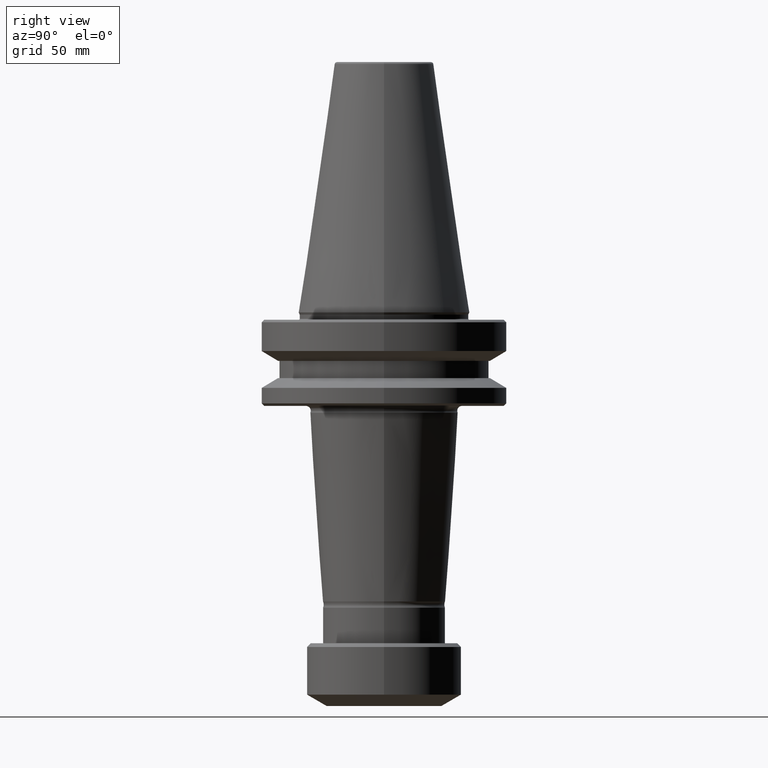
[diagram: clean part render]
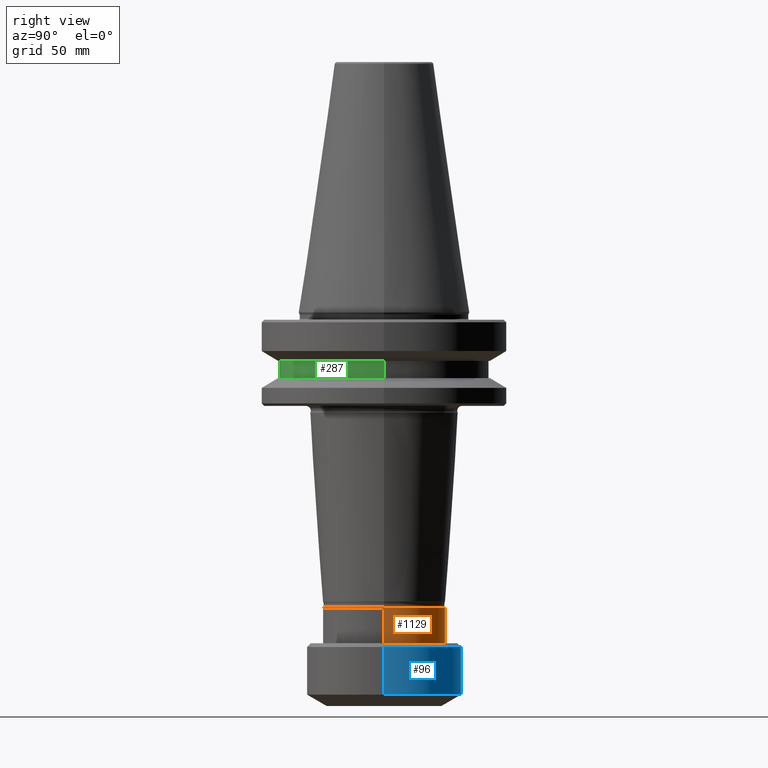
[diagram: same view with three faces highlighted in distinct colors, each labeled with its STEP entity id]
A machine part, right view with three faces highlighted in distinct colors.
Their STEP definitions:

[orange] entity #1129 — the highlighted cylindrical surface (partial cylindrical patch) has radius 24.95 mm, axis along (-0, -0, 1).
#4 = EDGE_CURVE ( 'NONE', #785, #1028, #240, .T. ) ;
#118 = DIRECTION ( 'NONE',  ( -0.0000000000000000000, -0.0000000000000000000, 1.000000000000000000 ) ) ;
#168 = LINE ( 'NONE', #213, #1234 ) ;
#192 = CARTESIAN_POINT ( 'NONE',  ( -24.95000000000002800, 3.055493763872649900E-015, -134.5046026282869000 ) ) ;
#201 = ORIENTED_EDGE ( 'NONE', *, *, #4, .F. ) ;
#213 = CARTESIAN_POINT ( 'NONE',  ( -24.95000000000002800, 3.055493763872649900E-015, 138.9069148892923000 ) ) ;
#240 = LINE ( 'NONE', #618, #777 ) ;
#279 = CARTESIAN_POINT ( 'NONE',  ( -24.95000000000002800, 3.055493763872649900E-015, -120.0000000000015500 ) ) ;
#315 = DIRECTION ( 'NONE',  ( 0.0000000000000000000, 0.0000000000000000000, -1.000000000000000000 ) ) ;
#383 = CARTESIAN_POINT ( 'NONE',  ( 0.0000000000000000000, 0.0000000000000000000, -134.5046026282869000 ) ) ;
#456 = AXIS2_PLACEMENT_3D ( 'NONE', #383, #315, #1274 ) ;
#509 = DIRECTION ( 'NONE',  ( 1.000000000000000000, 0.0000000000000000000, 0.0000000000000000000 ) ) ;
#517 = DIRECTION ( 'NONE',  ( 1.000000000000000000, 0.0000000000000000000, 0.0000000000000000000 ) ) ;
#528 = CARTESIAN_POINT ( 'NONE',  ( 0.0000000000000000000, 0.0000000000000000000, -120.0000000000015500 ) ) ;
#530 = CYLINDRICAL_SURFACE ( 'NONE', #1171, 24.95000000000002800 ) ;
#565 = AXIS2_PLACEMENT_3D ( 'NONE', #528, #1176, #509 ) ;
#594 = ORIENTED_EDGE ( 'NONE', *, *, #998, .T. ) ;
#618 = CARTESIAN_POINT ( 'NONE',  ( 24.95000000000002800, 0.0000000000000000000, 138.9069148892923000 ) ) ;
#640 = EDGE_CURVE ( 'NONE', #1317, #785, #718, .T. ) ;
#718 = CIRCLE ( 'NONE', #456, 24.95000000000002800 ) ;
#742 = EDGE_LOOP ( 'NONE', ( #1115, #594, #1205, #201 ) ) ;
#777 = VECTOR ( 'NONE', #886, 1000.000000000000000 ) ;
#785 = VERTEX_POINT ( 'NONE', #911 ) ;
#794 = CIRCLE ( 'NONE', #565, 24.95000000000002800 ) ;
#813 = DIRECTION ( 'NONE',  ( -0.0000000000000000000, -0.0000000000000000000, 1.000000000000000000 ) ) ;
#856 = EDGE_CURVE ( 'NONE', #1028, #1305, #794, .T. ) ;
#861 = FACE_OUTER_BOUND ( 'NONE', #742, .T. ) ;
#878 = CARTESIAN_POINT ( 'NONE',  ( 0.0000000000000000000, 0.0000000000000000000, 138.9069148892923000 ) ) ;
#886 = DIRECTION ( 'NONE',  ( -0.0000000000000000000, -0.0000000000000000000, 1.000000000000000000 ) ) ;
#911 = CARTESIAN_POINT ( 'NONE',  ( 24.95000000000002800, 0.0000000000000000000, -134.5046026282869000 ) ) ;
#998 = EDGE_CURVE ( 'NONE', #1317, #1305, #168, .T. ) ;
#1028 = VERTEX_POINT ( 'NONE', #1253 ) ;
#1115 = ORIENTED_EDGE ( 'NONE', *, *, #640, .F. ) ;
#1129 = ADVANCED_FACE ( 'NONE', ( #861 ), #530, .T. ) ;
#1171 = AXIS2_PLACEMENT_3D ( 'NONE', #878, #813, #517 ) ;
#1176 = DIRECTION ( 'NONE',  ( -0.0000000000000000000, -0.0000000000000000000, 1.000000000000000000 ) ) ;
#1205 = ORIENTED_EDGE ( 'NONE', *, *, #856, .F. ) ;
#1234 = VECTOR ( 'NONE', #118, 1000.000000000000000 ) ;
#1253 = CARTESIAN_POINT ( 'NONE',  ( 24.95000000000002800, 0.0000000000000000000, -120.0000000000015500 ) ) ;
#1274 = DIRECTION ( 'NONE',  ( -1.000000000000000000, 0.0000000000000000000, 0.0000000000000000000 ) ) ;
#1305 = VERTEX_POINT ( 'NONE', #279 ) ;
#1317 = VERTEX_POINT ( 'NONE', #192 ) ;

[blue] entity #96 — the highlighted cylindrical surface (partial cylindrical patch) has radius 31.5 mm, axis along (-0, -0, 1).
#10 = EDGE_LOOP ( 'NONE', ( #297, #338, #1278, #1177 ) ) ;
#47 = LINE ( 'NONE', #1293, #558 ) ;
#86 = CARTESIAN_POINT ( 'NONE',  ( 0.0000000000000000000, 0.0000000000000000000, 128.7093681790917400 ) ) ;
#96 = ADVANCED_FACE ( 'NONE', ( #1227 ), #449, .T. ) ;
#132 = AXIS2_PLACEMENT_3D ( 'NONE', #86, #1086, #1287 ) ;
#141 = EDGE_CURVE ( 'NONE', #910, #495, #440, .T. ) ;
#152 = DIRECTION ( 'NONE',  ( -0.0000000000000000000, -0.0000000000000000000, 1.000000000000000000 ) ) ;
#259 = DIRECTION ( 'NONE',  ( -0.0000000000000000000, -0.0000000000000000000, 1.000000000000000000 ) ) ;
#264 = VERTEX_POINT ( 'NONE', #948 ) ;
#275 = DIRECTION ( 'NONE',  ( 1.000000000000000000, 0.0000000000000000000, 0.0000000000000000000 ) ) ;
#288 = LINE ( 'NONE', #1038, #838 ) ;
#297 = ORIENTED_EDGE ( 'NONE', *, *, #541, .T. ) ;
#338 = ORIENTED_EDGE ( 'NONE', *, *, #1125, .T. ) ;
#430 = DIRECTION ( 'NONE',  ( -0.0000000000000000000, -0.0000000000000000000, 1.000000000000000000 ) ) ;
#440 = CIRCLE ( 'NONE', #1200, 31.50000000000000000 ) ;
#449 = CYLINDRICAL_SURFACE ( 'NONE', #132, 31.50000000000001400 ) ;
#450 = VERTEX_POINT ( 'NONE', #656 ) ;
#495 = VERTEX_POINT ( 'NONE', #1296 ) ;
#512 = EDGE_CURVE ( 'NONE', #450, #910, #288, .T. ) ;
#525 = CARTESIAN_POINT ( 'NONE',  ( 0.0000000000000000000, 0.0000000000000000000, -136.0046026282869000 ) ) ;
#541 = EDGE_CURVE ( 'NONE', #450, #264, #542, .T. ) ;
#542 = CIRCLE ( 'NONE', #646, 31.50000000000002800 ) ;
#543 = CARTESIAN_POINT ( 'NONE',  ( 31.50000000000000000, 0.0000000000000000000, -136.0046026282869000 ) ) ;
#544 = DIRECTION ( 'NONE',  ( -0.0000000000000000000, -0.0000000000000000000, 1.000000000000000000 ) ) ;
#558 = VECTOR ( 'NONE', #430, 1000.000000000000000 ) ;
#646 = AXIS2_PLACEMENT_3D ( 'NONE', #1232, #259, #275 ) ;
#656 = CARTESIAN_POINT ( 'NONE',  ( 31.50000000000002800, 0.0000000000000000000, -155.3858004746869300 ) ) ;
#838 = VECTOR ( 'NONE', #152, 1000.000000000000000 ) ;
#910 = VERTEX_POINT ( 'NONE', #543 ) ;
#948 = CARTESIAN_POINT ( 'NONE',  ( -31.50000000000002800, 3.857637417314166600E-015, -155.3858004746869300 ) ) ;
#1038 = CARTESIAN_POINT ( 'NONE',  ( 31.50000000000001400, 0.0000000000000000000, 128.7093681790917400 ) ) ;
#1086 = DIRECTION ( 'NONE',  ( -0.0000000000000000000, -0.0000000000000000000, 1.000000000000000000 ) ) ;
#1125 = EDGE_CURVE ( 'NONE', #264, #495, #47, .T. ) ;
#1177 = ORIENTED_EDGE ( 'NONE', *, *, #512, .F. ) ;
#1200 = AXIS2_PLACEMENT_3D ( 'NONE', #525, #544, #1283 ) ;
#1227 = FACE_OUTER_BOUND ( 'NONE', #10, .T. ) ;
#1232 = CARTESIAN_POINT ( 'NONE',  ( 0.0000000000000000000, 0.0000000000000000000, -155.3858004746869300 ) ) ;
#1278 = ORIENTED_EDGE ( 'NONE', *, *, #141, .F. ) ;
#1283 = DIRECTION ( 'NONE',  ( 1.000000000000000000, 0.0000000000000000000, 0.0000000000000000000 ) ) ;
#1287 = DIRECTION ( 'NONE',  ( 1.000000000000000000, 0.0000000000000000000, 0.0000000000000000000 ) ) ;
#1293 = CARTESIAN_POINT ( 'NONE',  ( -31.50000000000001400, 3.857637417314164300E-015, 128.7093681790917400 ) ) ;
#1296 = CARTESIAN_POINT ( 'NONE',  ( -31.50000000000000000, 3.857637417314163500E-015, -136.0046026282869000 ) ) ;

[green] entity #287 — the highlighted cylindrical surface (partial cylindrical patch) has radius 42.5 mm, axis along (-0, -0, 1).
#17 = CARTESIAN_POINT ( 'NONE',  ( -42.49999999999965200, 5.204748896376208300E-015, 138.9069148892923000 ) ) ;
#48 = ORIENTED_EDGE ( 'NONE', *, *, #649, .T. ) ;
#100 = EDGE_LOOP ( 'NONE', ( #603, #48, #1251, #1294 ) ) ;
#160 = VERTEX_POINT ( 'NONE', #848 ) ;
#255 = DIRECTION ( 'NONE',  ( -0.0000000000000000000, -0.0000000000000000000, 1.000000000000000000 ) ) ;
#272 = VECTOR ( 'NONE', #255, 1000.000000000000000 ) ;
#276 = CARTESIAN_POINT ( 'NONE',  ( 0.0000000000000000000, 0.0000000000000000000, -26.70000000000072400 ) ) ;
#281 = DIRECTION ( 'NONE',  ( -0.0000000000000000000, -0.0000000000000000000, 1.000000000000000000 ) ) ;
#287 = ADVANCED_FACE ( 'NONE', ( #580 ), #821, .T. ) ;
#300 = CARTESIAN_POINT ( 'NONE',  ( 0.0000000000000000000, 0.0000000000000000000, 138.9069148892923000 ) ) ;
#303 = LINE ( 'NONE', #1111, #1121 ) ;
#421 = CIRCLE ( 'NONE', #1229, 42.49999999999965200 ) ;
#446 = EDGE_CURVE ( 'NONE', #644, #898, #421, .T. ) ;
#516 = EDGE_CURVE ( 'NONE', #160, #898, #303, .T. ) ;
#521 = DIRECTION ( 'NONE',  ( 1.000000000000000000, 0.0000000000000000000, 0.0000000000000000000 ) ) ;
#536 = EDGE_CURVE ( 'NONE', #808, #644, #818, .T. ) ;
#576 = DIRECTION ( 'NONE',  ( 1.000000000000000000, 0.0000000000000000000, 0.0000000000000000000 ) ) ;
#580 = FACE_OUTER_BOUND ( 'NONE', #100, .T. ) ;
#603 = ORIENTED_EDGE ( 'NONE', *, *, #536, .F. ) ;
#644 = VERTEX_POINT ( 'NONE', #1235 ) ;
#649 = EDGE_CURVE ( 'NONE', #808, #160, #991, .T. ) ;
#672 = DIRECTION ( 'NONE',  ( -0.0000000000000000000, -0.0000000000000000000, 1.000000000000000000 ) ) ;
#778 = AXIS2_PLACEMENT_3D ( 'NONE', #276, #1096, #1327 ) ;
#792 = AXIS2_PLACEMENT_3D ( 'NONE', #300, #281, #521 ) ;
#808 = VERTEX_POINT ( 'NONE', #1313 ) ;
#818 = LINE ( 'NONE', #17, #272 ) ;
#821 = CYLINDRICAL_SURFACE ( 'NONE', #792, 42.49999999999965200 ) ;
#848 = CARTESIAN_POINT ( 'NONE',  ( 42.49999999999965200, 0.0000000000000000000, -26.70000000000072400 ) ) ;
#898 = VERTEX_POINT ( 'NONE', #1130 ) ;
#991 = CIRCLE ( 'NONE', #778, 42.49999999999965200 ) ;
#1062 = CARTESIAN_POINT ( 'NONE',  ( 0.0000000000000000000, 0.0000000000000000000, -19.70000000000071700 ) ) ;
#1096 = DIRECTION ( 'NONE',  ( -0.0000000000000000000, -0.0000000000000000000, 1.000000000000000000 ) ) ;
#1111 = CARTESIAN_POINT ( 'NONE',  ( 42.49999999999965200, 0.0000000000000000000, 138.9069148892923000 ) ) ;
#1121 = VECTOR ( 'NONE', #672, 1000.000000000000000 ) ;
#1130 = CARTESIAN_POINT ( 'NONE',  ( 42.49999999999965200, 0.0000000000000000000, -19.70000000000071700 ) ) ;
#1134 = DIRECTION ( 'NONE',  ( -0.0000000000000000000, -0.0000000000000000000, 1.000000000000000000 ) ) ;
#1229 = AXIS2_PLACEMENT_3D ( 'NONE', #1062, #1134, #576 ) ;
#1235 = CARTESIAN_POINT ( 'NONE',  ( -42.49999999999965200, 5.204748896376208300E-015, -19.70000000000071700 ) ) ;
#1251 = ORIENTED_EDGE ( 'NONE', *, *, #516, .T. ) ;
#1294 = ORIENTED_EDGE ( 'NONE', *, *, #446, .F. ) ;
#1313 = CARTESIAN_POINT ( 'NONE',  ( -42.49999999999965200, 5.204748896376208300E-015, -26.70000000000072400 ) ) ;
#1327 = DIRECTION ( 'NONE',  ( 1.000000000000000000, 0.0000000000000000000, 0.0000000000000000000 ) ) ;